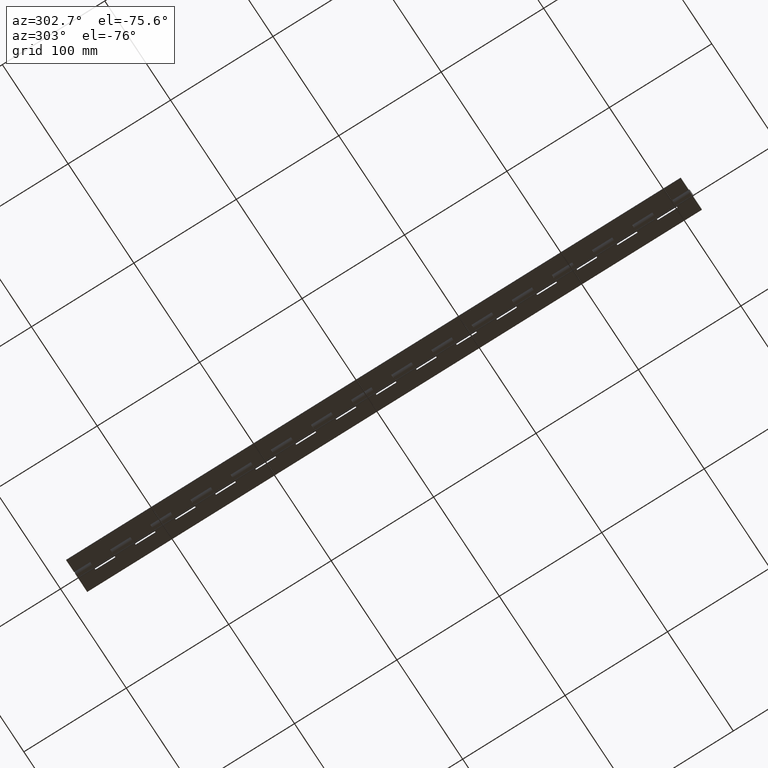
[diagram: clean part render]
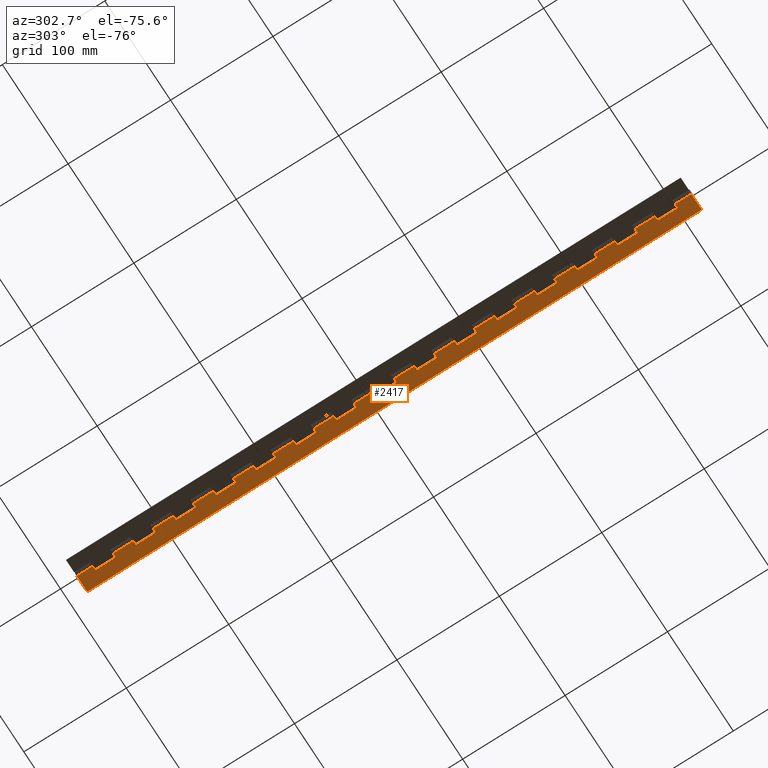
[diagram: same view with one face highlighted and labeled with its STEP entity id]
A machine part, auxiliary view. The second image highlights one B-rep face of the part: STEP entity #2417.
In plain terms, the highlighted planar face has unit normal (0, 0, 1).
Its self-contained STEP definition (entity closure, byte-faithful):
#3 = DIRECTION ( 'NONE',  ( 1.770125995894701000E-016, 1.000000000000000000, -0.0000000000000000000 ) ) ;
#14 = EDGE_CURVE ( 'NONE', #4854, #4868, #5901, .T. ) ;
#17 = VECTOR ( 'NONE', #1521, 1000.000000000000000 ) ;
#24 = LINE ( 'NONE', #6133, #5371 ) ;
#34 = CARTESIAN_POINT ( 'NONE',  ( 3.999999999999996400, 274.4000000000000300, -3.350002187502756400 ) ) ;
#79 = LINE ( 'NONE', #5497, #5417 ) ;
#82 = ORIENTED_EDGE ( 'NONE', *, *, #2186, .T. ) ;
#85 = LINE ( 'NONE', #3140, #4050 ) ;
#94 = DIRECTION ( 'NONE',  ( -1.000000000000000000, -0.0000000000000000000, -0.0000000000000000000 ) ) ;
#95 = CARTESIAN_POINT ( 'NONE',  ( 0.0000000000000000000, 490.0000000000000600, -3.350002187502757700 ) ) ;
#104 = CARTESIAN_POINT ( 'NONE',  ( 0.0000000000000000000, 548.8000000000000700, -3.350002187502757700 ) ) ;
#106 = DIRECTION ( 'NONE',  ( -1.000000000000000000, -0.0000000000000000000, -0.0000000000000000000 ) ) ;
#111 = CARTESIAN_POINT ( 'NONE',  ( 0.0000000000000000000, 372.4000000000000900, -3.350002187502757700 ) ) ;
#132 = CARTESIAN_POINT ( 'NONE',  ( 16.00000000000000000, 509.6000000000000800, -3.350002187502757700 ) ) ;
#150 = VECTOR ( 'NONE', #2169, 1000.000000000000000 ) ;
#153 = CARTESIAN_POINT ( 'NONE',  ( 4.000000000000000000, 215.6000000000000500, -3.350002187502757700 ) ) ;
#155 = VECTOR ( 'NONE', #659, 1000.000000000000000 ) ;
#165 = DIRECTION ( 'NONE',  ( -0.0000000000000000000, -1.000000000000000000, -0.0000000000000000000 ) ) ;
#166 = CARTESIAN_POINT ( 'NONE',  ( 0.0000000000000000000, 568.3999999999999800, -3.350002187502755900 ) ) ;
#171 = CARTESIAN_POINT ( 'NONE',  ( 16.00000000000000000, 470.4000000000000300, -3.350002187502757700 ) ) ;
#181 = CARTESIAN_POINT ( 'NONE',  ( 0.0000000000000000000, 19.60000000000000100, -3.350002187502757700 ) ) ;
#185 = DIRECTION ( 'NONE',  ( -1.000000000000000000, -0.0000000000000000000, -0.0000000000000000000 ) ) ;
#197 = DIRECTION ( 'NONE',  ( 1.000000000000000000, 0.0000000000000000000, -1.084202172485504400E-016 ) ) ;
#210 = VERTEX_POINT ( 'NONE', #4672 ) ;
#238 = VECTOR ( 'NONE', #392, 1000.000000000000000 ) ;
#257 = DIRECTION ( 'NONE',  ( 1.770125995894701000E-016, 1.000000000000000000, -0.0000000000000000000 ) ) ;
#273 = DIRECTION ( 'NONE',  ( 1.770125995894701000E-016, 1.000000000000000000, -0.0000000000000000000 ) ) ;
#290 = CARTESIAN_POINT ( 'NONE',  ( 4.000000000000000000, 333.2000000000000500, -3.350002187502757700 ) ) ;
#293 = LINE ( 'NONE', #1298, #3940 ) ;
#296 = VERTEX_POINT ( 'NONE', #4794 ) ;
#301 = CARTESIAN_POINT ( 'NONE',  ( 4.000000000000000000, 411.6000000000000800, -3.350002187502757700 ) ) ;
#331 = DIRECTION ( 'NONE',  ( -0.0000000000000000000, -1.000000000000000000, -0.0000000000000000000 ) ) ;
#334 = CARTESIAN_POINT ( 'NONE',  ( 0.0000000000000000000, 568.3999999999999800, -3.350002187502757700 ) ) ;
#337 = EDGE_CURVE ( 'NONE', #3381, #1179, #293, .T. ) ;
#352 = LINE ( 'NONE', #4805, #2958 ) ;
#371 = DIRECTION ( 'NONE',  ( -1.000000000000000000, 0.0000000000000000000, 1.084202172485504400E-016 ) ) ;
#389 = ORIENTED_EDGE ( 'NONE', *, *, #4729, .F. ) ;
#390 = VERTEX_POINT ( 'NONE', #1659 ) ;
#391 = EDGE_CURVE ( 'NONE', #5646, #5825, #2223, .T. ) ;
#392 = DIRECTION ( 'NONE',  ( -1.000000000000000000, -0.0000000000000000000, -0.0000000000000000000 ) ) ;
#414 = DIRECTION ( 'NONE',  ( -1.000000000000000000, -0.0000000000000000000, -0.0000000000000000000 ) ) ;
#418 = VECTOR ( 'NONE', #3118, 1000.000000000000000 ) ;
#425 = EDGE_CURVE ( 'NONE', #3454, #2831, #675, .T. ) ;
#448 = LINE ( 'NONE', #2548, #4584 ) ;
#470 = VECTOR ( 'NONE', #866, 1000.000000000000000 ) ;
#475 = CARTESIAN_POINT ( 'NONE',  ( 3.999999999999996400, 78.40000000000002000, -3.350002187502756400 ) ) ;
#478 = LINE ( 'NONE', #1546, #3082 ) ;
#482 = CARTESIAN_POINT ( 'NONE',  ( 0.0000000000000000000, 529.2000000000000500, -3.350002187502757700 ) ) ;
#519 = VECTOR ( 'NONE', #3740, 1000.000000000000000 ) ;
#532 = CARTESIAN_POINT ( 'NONE',  ( 0.0000000000000000000, 274.4000000000000300, -3.350002187502757700 ) ) ;
#535 = DIRECTION ( 'NONE',  ( 1.770125995894701000E-016, 1.000000000000000000, -0.0000000000000000000 ) ) ;
#538 = VERTEX_POINT ( 'NONE', #2510 ) ;
#563 = LINE ( 'NONE', #2864, #5928 ) ;
#586 = CARTESIAN_POINT ( 'NONE',  ( 0.0000000000000000000, 0.0000000000000000000, -3.350002187502757700 ) ) ;
#623 = LINE ( 'NONE', #6610, #470 ) ;
#633 = DIRECTION ( 'NONE',  ( 1.000000000000000000, 0.0000000000000000000, -1.084202172485504400E-016 ) ) ;
#654 = ORIENTED_EDGE ( 'NONE', *, *, #912, .T. ) ;
#659 = DIRECTION ( 'NONE',  ( 1.770125995894701000E-016, 1.000000000000000000, -0.0000000000000000000 ) ) ;
#668 = VECTOR ( 'NONE', #3788, 1000.000000000000000 ) ;
#675 = LINE ( 'NONE', #5288, #3295 ) ;
#680 = VECTOR ( 'NONE', #3341, 1000.000000000000000 ) ;
#681 = CARTESIAN_POINT ( 'NONE',  ( 0.0000000000000000000, 392.0000000000000600, -3.350002187502757700 ) ) ;
#709 = CARTESIAN_POINT ( 'NONE',  ( 4.000000000000000000, 137.2000000000000200, -3.350002187502757700 ) ) ;
#740 = CARTESIAN_POINT ( 'NONE',  ( 0.0000000000000000000, 294.0000000000000600, -3.350002187502757700 ) ) ;
#773 = LINE ( 'NONE', #1878, #2157 ) ;
#793 = DIRECTION ( 'NONE',  ( 1.000000000000000000, 0.0000000000000000000, -1.084202172485504400E-016 ) ) ;
#801 = CARTESIAN_POINT ( 'NONE',  ( 0.0000000000000000000, 568.3999999999999800, -3.350002187502755900 ) ) ;
#830 = ORIENTED_EDGE ( 'NONE', *, *, #2357, .T. ) ;
#836 = VECTOR ( 'NONE', #3088, 1000.000000000000000 ) ;
#842 = VECTOR ( 'NONE', #4320, 1000.000000000000000 ) ;
#866 = DIRECTION ( 'NONE',  ( 1.770125995894701000E-016, 1.000000000000000000, -0.0000000000000000000 ) ) ;
#879 = EDGE_CURVE ( 'NONE', #3823, #1574, #4659, .T. ) ;
#880 = DIRECTION ( 'NONE',  ( 1.000000000000000000, 0.0000000000000000000, -1.084202172485504400E-016 ) ) ;
#884 = EDGE_CURVE ( 'NONE', #3799, #296, #1883, .T. ) ;
#893 = ORIENTED_EDGE ( 'NONE', *, *, #1907, .T. ) ;
#912 = EDGE_CURVE ( 'NONE', #390, #1179, #3131, .T. ) ;
#945 = VECTOR ( 'NONE', #958, 1000.000000000000000 ) ;
#958 = DIRECTION ( 'NONE',  ( -0.0000000000000000000, -1.000000000000000000, -0.0000000000000000000 ) ) ;
#962 = CARTESIAN_POINT ( 'NONE',  ( 4.000000000000000000, 254.8000000000000400, -3.350002187502757700 ) ) ;
#966 = VERTEX_POINT ( 'NONE', #95 ) ;
#974 = VERTEX_POINT ( 'NONE', #111 ) ;
#1006 = ORIENTED_EDGE ( 'NONE', *, *, #5023, .T. ) ;
#1018 = ORIENTED_EDGE ( 'NONE', *, *, #6103, .T. ) ;
#1037 = CARTESIAN_POINT ( 'NONE',  ( -3.350002187502757700, 568.3999999999999800, -3.350002187502757700 ) ) ;
#1057 = ORIENTED_EDGE ( 'NONE', *, *, #6538, .T. ) ;
#1082 = CARTESIAN_POINT ( 'NONE',  ( 4.000000000000000000, 294.0000000000000600, -3.350002187502757700 ) ) ;
#1105 = CARTESIAN_POINT ( 'NONE',  ( 0.0000000000000000000, 568.3999999999999800, -3.350002187502755900 ) ) ;
#1128 = CARTESIAN_POINT ( 'NONE',  ( 0.0000000000000000000, 78.40000000000000600, -3.350002187502757700 ) ) ;
#1130 = DIRECTION ( 'NONE',  ( 1.770125995894701000E-016, 1.000000000000000000, -0.0000000000000000000 ) ) ;
#1137 = CARTESIAN_POINT ( 'NONE',  ( 16.00000000000000000, 78.40000000000002000, -3.350002187502757700 ) ) ;
#1139 = CARTESIAN_POINT ( 'NONE',  ( 0.0000000000000000000, 254.8000000000000400, -3.350002187502757700 ) ) ;
#1178 = VECTOR ( 'NONE', #535, 1000.000000000000000 ) ;
#1179 = VERTEX_POINT ( 'NONE', #482 ) ;
#1180 = EDGE_CURVE ( 'NONE', #3626, #4572, #3041, .T. ) ;
#1194 = EDGE_CURVE ( 'NONE', #2166, #6113, #4248, .T. ) ;
#1228 = LINE ( 'NONE', #3961, #6595 ) ;
#1247 = VERTEX_POINT ( 'NONE', #3302 ) ;
#1248 = CARTESIAN_POINT ( 'NONE',  ( -3.350002187502757700, 450.8000000000000700, -3.350002187502757700 ) ) ;
#1298 = CARTESIAN_POINT ( 'NONE',  ( 0.0000000000000000000, 568.3999999999999800, -3.350002187502755900 ) ) ;
#1310 = EDGE_CURVE ( 'NONE', #3321, #4641, #4652, .T. ) ;
#1330 = VECTOR ( 'NONE', #3637, 1000.000000000000000 ) ;
#1347 = EDGE_CURVE ( 'NONE', #3760, #6599, #5876, .T. ) ;
#1356 = EDGE_CURVE ( 'NONE', #5646, #966, #5713, .T. ) ;
#1365 = EDGE_CURVE ( 'NONE', #3677, #3460, #352, .T. ) ;
#1380 = LINE ( 'NONE', #5664, #17 ) ;
#1404 = VERTEX_POINT ( 'NONE', #2384 ) ;
#1411 = EDGE_CURVE ( 'NONE', #2882, #974, #1228, .T. ) ;
#1442 = LINE ( 'NONE', #3513, #5592 ) ;
#1444 = VECTOR ( 'NONE', #3, 1000.000000000000000 ) ;
#1453 = DIRECTION ( 'NONE',  ( -1.000000000000000000, -0.0000000000000000000, -0.0000000000000000000 ) ) ;
#1501 = VERTEX_POINT ( 'NONE', #5602 ) ;
#1506 = LINE ( 'NONE', #1105, #4273 ) ;
#1521 = DIRECTION ( 'NONE',  ( -1.000000000000000000, -0.0000000000000000000, -0.0000000000000000000 ) ) ;
#1546 = CARTESIAN_POINT ( 'NONE',  ( 4.000000000000000000, 450.8000000000000700, -3.350002187502757700 ) ) ;
#1560 = VECTOR ( 'NONE', #4339, 1000.000000000000000 ) ;
#1571 = EDGE_CURVE ( 'NONE', #6359, #5243, #4704, .T. ) ;
#1572 = DIRECTION ( 'NONE',  ( 1.770125995894701000E-016, 1.000000000000000000, -0.0000000000000000000 ) ) ;
#1574 = VERTEX_POINT ( 'NONE', #4100 ) ;
#1584 = VERTEX_POINT ( 'NONE', #4628 ) ;
#1608 = LINE ( 'NONE', #6081, #238 ) ;
#1611 = CARTESIAN_POINT ( 'NONE',  ( 16.00000000000000000, -15.80000000000000100, -3.350002187502757700 ) ) ;
#1626 = CARTESIAN_POINT ( 'NONE',  ( 16.00000000000000000, 274.4000000000000300, -3.350002187502757700 ) ) ;
#1628 = DIRECTION ( 'NONE',  ( -0.0000000000000000000, -1.000000000000000000, -0.0000000000000000000 ) ) ;
#1636 = EDGE_CURVE ( 'NONE', #210, #5982, #3012, .T. ) ;
#1644 = VECTOR ( 'NONE', #5649, 1000.000000000000000 ) ;
#1659 = CARTESIAN_POINT ( 'NONE',  ( 4.000000000000000000, 529.2000000000000500, -3.350002187502757700 ) ) ;
#1662 = VERTEX_POINT ( 'NONE', #2609 ) ;
#1682 = EDGE_CURVE ( 'NONE', #2969, #5279, #85, .T. ) ;
#1691 = VERTEX_POINT ( 'NONE', #4165 ) ;
#1693 = LINE ( 'NONE', #5458, #4470 ) ;
#1696 = CARTESIAN_POINT ( 'NONE',  ( 0.0000000000000000000, 568.3999999999999800, -3.350002187502755900 ) ) ;
#1701 = LINE ( 'NONE', #5589, #2608 ) ;
#1708 = CARTESIAN_POINT ( 'NONE',  ( 3.999999999999996400, 431.2000000000001000, -3.350002187502756400 ) ) ;
#1726 = VECTOR ( 'NONE', #94, 1000.000000000000000 ) ;
#1743 = ORIENTED_EDGE ( 'NONE', *, *, #391, .T. ) ;
#1751 = EDGE_CURVE ( 'NONE', #3626, #3309, #6156, .T. ) ;
#1757 = LINE ( 'NONE', #3318, #5753 ) ;
#1775 = LINE ( 'NONE', #301, #3493 ) ;
#1783 = LINE ( 'NONE', #6217, #418 ) ;
#1787 = CARTESIAN_POINT ( 'NONE',  ( 0.0000000000000000000, 156.8000000000000100, -3.350002187502757700 ) ) ;
#1813 = PLANE ( 'NONE',  #4753 ) ;
#1820 = ORIENTED_EDGE ( 'NONE', *, *, #337, .F. ) ;
#1826 = DIRECTION ( 'NONE',  ( -1.000000000000000000, -0.0000000000000000000, -0.0000000000000000000 ) ) ;
#1832 = EDGE_CURVE ( 'NONE', #1691, #1404, #2926, .T. ) ;
#1848 = CARTESIAN_POINT ( 'NONE',  ( 0.0000000000000000000, 313.6000000000000200, -3.350002187502757700 ) ) ;
#1877 = VECTOR ( 'NONE', #165, 1000.000000000000000 ) ;
#1878 = CARTESIAN_POINT ( 'NONE',  ( 0.0000000000000000000, 568.3999999999999800, -3.350002187502755900 ) ) ;
#1883 = LINE ( 'NONE', #3180, #1726 ) ;
#1886 = CARTESIAN_POINT ( 'NONE',  ( 4.000000000000000000, 333.2000000000000500, -3.350002187502757700 ) ) ;
#1900 = VECTOR ( 'NONE', #6580, 1000.000000000000000 ) ;
#1902 = ORIENTED_EDGE ( 'NONE', *, *, #6311, .T. ) ;
#1907 = EDGE_CURVE ( 'NONE', #5878, #4641, #6562, .T. ) ;
#1912 = VECTOR ( 'NONE', #793, 1000.000000000000000 ) ;
#1955 = CARTESIAN_POINT ( 'NONE',  ( 4.000000000000000000, 568.3999999999999800, -3.350002187502757700 ) ) ;
#1986 = VERTEX_POINT ( 'NONE', #2311 ) ;
#2012 = CARTESIAN_POINT ( 'NONE',  ( 0.0000000000000000000, 117.6000000000000100, -3.350002187502757700 ) ) ;
#2043 = EDGE_CURVE ( 'NONE', #6359, #5639, #79, .T. ) ;
#2065 = LINE ( 'NONE', #5923, #680 ) ;
#2079 = CARTESIAN_POINT ( 'NONE',  ( 0.0000000000000000000, 411.6000000000000800, -3.350002187502757700 ) ) ;
#2109 = CARTESIAN_POINT ( 'NONE',  ( 0.0000000000000000000, 568.3999999999999800, -3.350002187502755900 ) ) ;
#2141 = DIRECTION ( 'NONE',  ( 1.000000000000000000, 0.0000000000000000000, -1.084202172485504400E-016 ) ) ;
#2145 = VERTEX_POINT ( 'NONE', #1955 ) ;
#2156 = DIRECTION ( 'NONE',  ( 1.770125995894701000E-016, 1.000000000000000000, -0.0000000000000000000 ) ) ;
#2157 = VECTOR ( 'NONE', #4482, 1000.000000000000000 ) ;
#2166 = VERTEX_POINT ( 'NONE', #5070 ) ;
#2169 = DIRECTION ( 'NONE',  ( 1.000000000000000000, 0.0000000000000000000, -1.084202172485504400E-016 ) ) ;
#2186 = EDGE_CURVE ( 'NONE', #1247, #4839, #4122, .T. ) ;
#2203 = CARTESIAN_POINT ( 'NONE',  ( 4.000000000000000000, 176.4000000000000300, -3.350002187502757700 ) ) ;
#2223 = LINE ( 'NONE', #132, #836 ) ;
#2271 = DIRECTION ( 'NONE',  ( -0.0000000000000000000, -1.000000000000000000, -0.0000000000000000000 ) ) ;
#2280 = DIRECTION ( 'NONE',  ( 1.000000000000000000, 0.0000000000000000000, -1.084202172485504400E-016 ) ) ;
#2285 = CARTESIAN_POINT ( 'NONE',  ( 0.0000000000000000000, 333.2000000000000500, -3.350002187502757700 ) ) ;
#2291 = CARTESIAN_POINT ( 'NONE',  ( 3.999999999999996400, 470.4000000000000300, -3.350002187502756400 ) ) ;
#2311 = CARTESIAN_POINT ( 'NONE',  ( 3.999999999999996400, 352.8000000000000700, -3.350002187502756400 ) ) ;
#2316 = LINE ( 'NONE', #709, #842 ) ;
#2321 = CARTESIAN_POINT ( 'NONE',  ( 3.999999999999996400, 313.6000000000000200, -3.350002187502756400 ) ) ;
#2357 = EDGE_CURVE ( 'NONE', #4915, #1574, #2996, .T. ) ;
#2379 = VECTOR ( 'NONE', #2156, 1000.000000000000000 ) ;
#2384 = CARTESIAN_POINT ( 'NONE',  ( 4.000000000000000000, 176.4000000000000300, -3.350002187502757700 ) ) ;
#2386 = VERTEX_POINT ( 'NONE', #5433 ) ;
#2403 = VERTEX_POINT ( 'NONE', #2321 ) ;
#2417 = ADVANCED_FACE ( 'NONE', ( #3862 ), #1813, .F. ) ;
#2418 = VECTOR ( 'NONE', #3745, 1000.000000000000000 ) ;
#2419 = EDGE_CURVE ( 'NONE', #2882, #538, #2491, .T. ) ;
#2458 = EDGE_CURVE ( 'NONE', #2403, #5878, #6627, .T. ) ;
#2479 = ORIENTED_EDGE ( 'NONE', *, *, #4596, .F. ) ;
#2484 = EDGE_CURVE ( 'NONE', #2652, #1584, #773, .T. ) ;
#2491 = LINE ( 'NONE', #3909, #1912 ) ;
#2494 = CARTESIAN_POINT ( 'NONE',  ( 4.000000000000000000, 19.60000000000000100, -3.350002187502757700 ) ) ;
#2510 = CARTESIAN_POINT ( 'NONE',  ( 3.999999999999996400, 392.0000000000000600, -3.350002187502756400 ) ) ;
#2531 = CARTESIAN_POINT ( 'NONE',  ( 0.0000000000000000000, 568.3999999999999800, -3.350002187502755900 ) ) ;
#2532 = DIRECTION ( 'NONE',  ( 1.770125995894701000E-016, 1.000000000000000000, -0.0000000000000000000 ) ) ;
#2548 = CARTESIAN_POINT ( 'NONE',  ( 16.00000000000000000, 196.0000000000000600, -3.350002187502757700 ) ) ;
#2570 = VERTEX_POINT ( 'NONE', #586 ) ;
#2573 = ORIENTED_EDGE ( 'NONE', *, *, #1682, .F. ) ;
#2578 = EDGE_CURVE ( 'NONE', #2570, #2969, #1506, .T. ) ;
#2595 = DIRECTION ( 'NONE',  ( -0.0000000000000000000, -1.000000000000000000, -0.0000000000000000000 ) ) ;
#2598 = EDGE_CURVE ( 'NONE', #4252, #6272, #6703, .T. ) ;
#2604 = VECTOR ( 'NONE', #2595, 1000.000000000000000 ) ;
#2608 = VECTOR ( 'NONE', #5048, 1000.000000000000000 ) ;
#2609 = CARTESIAN_POINT ( 'NONE',  ( 0.0000000000000000000, 176.4000000000000300, -3.350002187502757700 ) ) ;
#2617 = ORIENTED_EDGE ( 'NONE', *, *, #1347, .T. ) ;
#2628 = ORIENTED_EDGE ( 'NONE', *, *, #2752, .F. ) ;
#2652 = VERTEX_POINT ( 'NONE', #1787 ) ;
#2687 = VECTOR ( 'NONE', #3398, 1000.000000000000000 ) ;
#2697 = VECTOR ( 'NONE', #5338, 1000.000000000000000 ) ;
#2713 = VECTOR ( 'NONE', #2532, 1000.000000000000000 ) ;
#2745 = ORIENTED_EDGE ( 'NONE', *, *, #5195, .F. ) ;
#2752 = EDGE_CURVE ( 'NONE', #3034, #3460, #4521, .T. ) ;
#2770 = VECTOR ( 'NONE', #371, 1000.000000000000000 ) ;
#2772 = CARTESIAN_POINT ( 'NONE',  ( 0.0000000000000000000, 509.6000000000000800, -3.350002187502757700 ) ) ;
#2774 = DIRECTION ( 'NONE',  ( -0.0000000000000000000, -1.000000000000000000, -0.0000000000000000000 ) ) ;
#2777 = CARTESIAN_POINT ( 'NONE',  ( -3.350002187502757700, 333.2000000000000500, -3.350002187502757700 ) ) ;
#2819 = ORIENTED_EDGE ( 'NONE', *, *, #5755, .T. ) ;
#2831 = VERTEX_POINT ( 'NONE', #5026 ) ;
#2838 = CARTESIAN_POINT ( 'NONE',  ( 0.0000000000000000000, 431.2000000000001000, -3.350002187502757700 ) ) ;
#2844 = CARTESIAN_POINT ( 'NONE',  ( 4.000000000000000000, 58.80000000000000400, -3.350002187502757700 ) ) ;
#2857 = CARTESIAN_POINT ( 'NONE',  ( 3.999999999999996400, 196.0000000000000600, -3.350002187502756400 ) ) ;
#2864 = CARTESIAN_POINT ( 'NONE',  ( 4.000000000000000000, 98.00000000000001400, -3.350002187502757700 ) ) ;
#2868 = ORIENTED_EDGE ( 'NONE', *, *, #5587, .T. ) ;
#2870 = CARTESIAN_POINT ( 'NONE',  ( 16.00000000000000000, 235.2000000000000200, -3.350002187502757700 ) ) ;
#2875 = VECTOR ( 'NONE', #1453, 1000.000000000000000 ) ;
#2877 = DIRECTION ( 'NONE',  ( 1.000000000000000000, 0.0000000000000000000, -1.084202172485504400E-016 ) ) ;
#2882 = VERTEX_POINT ( 'NONE', #681 ) ;
#2909 = ORIENTED_EDGE ( 'NONE', *, *, #1636, .T. ) ;
#2910 = EDGE_CURVE ( 'NONE', #4868, #3384, #2316, .T. ) ;
#2926 = LINE ( 'NONE', #2203, #155 ) ;
#2935 = EDGE_CURVE ( 'NONE', #1986, #6273, #2065, .T. ) ;
#2958 = VECTOR ( 'NONE', #5304, 1000.000000000000000 ) ;
#2962 = CARTESIAN_POINT ( 'NONE',  ( 16.00000000000000000, 584.2000000000000500, -3.350002187502757700 ) ) ;
#2965 = LINE ( 'NONE', #4840, #1560 ) ;
#2969 = VERTEX_POINT ( 'NONE', #4393 ) ;
#2977 = VERTEX_POINT ( 'NONE', #2857 ) ;
#2996 = LINE ( 'NONE', #1248, #5576 ) ;
#3012 = LINE ( 'NONE', #5696, #1444 ) ;
#3019 = ORIENTED_EDGE ( 'NONE', *, *, #1832, .T. ) ;
#3034 = VERTEX_POINT ( 'NONE', #1848 ) ;
#3041 = LINE ( 'NONE', #6167, #1644 ) ;
#3048 = VECTOR ( 'NONE', #5764, 1000.000000000000000 ) ;
#3061 = CARTESIAN_POINT ( 'NONE',  ( 4.000000000000000000, 98.00000000000001400, -3.350002187502757700 ) ) ;
#3079 = CARTESIAN_POINT ( 'NONE',  ( 3.999999999999996400, 117.6000000000000400, -3.350002187502756400 ) ) ;
#3082 = VECTOR ( 'NONE', #1572, 1000.000000000000000 ) ;
#3088 = DIRECTION ( 'NONE',  ( 1.000000000000000000, 0.0000000000000000000, -1.084202172485504400E-016 ) ) ;
#3118 = DIRECTION ( 'NONE',  ( -1.000000000000000000, -0.0000000000000000000, -0.0000000000000000000 ) ) ;
#3121 = VECTOR ( 'NONE', #633, 1000.000000000000000 ) ;
#3131 = LINE ( 'NONE', #3336, #5548 ) ;
#3139 = VERTEX_POINT ( 'NONE', #4567 ) ;
#3140 = CARTESIAN_POINT ( 'NONE',  ( -6.153854184092820600E-016, -15.80000000000000100, -3.350002187502755900 ) ) ;
#3150 = VECTOR ( 'NONE', #331, 1000.000000000000000 ) ;
#3180 = CARTESIAN_POINT ( 'NONE',  ( -3.350002187502757700, 215.6000000000000500, -3.350002187502757700 ) ) ;
#3187 = VERTEX_POINT ( 'NONE', #3061 ) ;
#3194 = CARTESIAN_POINT ( 'NONE',  ( 4.000000000000000000, 137.2000000000000200, -3.350002187502757700 ) ) ;
#3200 = EDGE_CURVE ( 'NONE', #5880, #2977, #448, .T. ) ;
#3212 = EDGE_CURVE ( 'NONE', #2652, #1691, #5640, .T. ) ;
#3213 = DIRECTION ( 'NONE',  ( -1.000000000000000000, -0.0000000000000000000, -0.0000000000000000000 ) ) ;
#3241 = ORIENTED_EDGE ( 'NONE', *, *, #6660, .T. ) ;
#3288 = EDGE_CURVE ( 'NONE', #2145, #4027, #5477, .T. ) ;
#3294 = LINE ( 'NONE', #4752, #5891 ) ;
#3295 = VECTOR ( 'NONE', #1130, 1000.000000000000000 ) ;
#3302 = CARTESIAN_POINT ( 'NONE',  ( 0.0000000000000000000, 39.20000000000000300, -3.350002187502757700 ) ) ;
#3307 = ORIENTED_EDGE ( 'NONE', *, *, #4892, .T. ) ;
#3309 = VERTEX_POINT ( 'NONE', #34 ) ;
#3318 = CARTESIAN_POINT ( 'NONE',  ( 16.00000000000000000, 352.8000000000000700, -3.350002187502757700 ) ) ;
#3321 = VERTEX_POINT ( 'NONE', #4713 ) ;
#3336 = CARTESIAN_POINT ( 'NONE',  ( -3.350002187502757700, 529.2000000000000500, -3.350002187502757700 ) ) ;
#3341 = DIRECTION ( 'NONE',  ( 1.770125995894701000E-016, 1.000000000000000000, -0.0000000000000000000 ) ) ;
#3381 = VERTEX_POINT ( 'NONE', #104 ) ;
#3384 = VERTEX_POINT ( 'NONE', #3194 ) ;
#3398 = DIRECTION ( 'NONE',  ( 1.000000000000000000, 0.0000000000000000000, -1.084202172485504400E-016 ) ) ;
#3406 = ORIENTED_EDGE ( 'NONE', *, *, #2578, .F. ) ;
#3408 = EDGE_CURVE ( 'NONE', #3760, #6272, #3294, .T. ) ;
#3429 = CARTESIAN_POINT ( 'NONE',  ( 0.0000000000000000000, 98.00000000000001400, -3.350002187502757700 ) ) ;
#3432 = DIRECTION ( 'NONE',  ( 1.000000000000000000, 0.0000000000000000000, -1.084202172485504400E-016 ) ) ;
#3439 = DIRECTION ( 'NONE',  ( -0.0000000000000000000, -1.000000000000000000, -0.0000000000000000000 ) ) ;
#3454 = VERTEX_POINT ( 'NONE', #2291 ) ;
#3460 = VERTEX_POINT ( 'NONE', #740 ) ;
#3463 = CARTESIAN_POINT ( 'NONE',  ( -3.350002187502754100, 0.0000000000000000000, -3.350002187502757700 ) ) ;
#3467 = ORIENTED_EDGE ( 'NONE', *, *, #3652, .F. ) ;
#3482 = CARTESIAN_POINT ( 'NONE',  ( 16.00000000000000000, 117.6000000000000400, -3.350002187502757700 ) ) ;
#3493 = VECTOR ( 'NONE', #3913, 1000.000000000000000 ) ;
#3513 = CARTESIAN_POINT ( 'NONE',  ( -3.350002187502757700, 372.4000000000000900, -3.350002187502757700 ) ) ;
#3514 = VERTEX_POINT ( 'NONE', #3931 ) ;
#3550 = ORIENTED_EDGE ( 'NONE', *, *, #3804, .T. ) ;
#3574 = VECTOR ( 'NONE', #3975, 1000.000000000000000 ) ;
#3588 = ORIENTED_EDGE ( 'NONE', *, *, #5776, .T. ) ;
#3590 = CARTESIAN_POINT ( 'NONE',  ( 16.00000000000000000, 156.8000000000000400, -3.350002187502757700 ) ) ;
#3619 = ORIENTED_EDGE ( 'NONE', *, *, #3734, .T. ) ;
#3624 = DIRECTION ( 'NONE',  ( 1.000000000000000000, 0.0000000000000000000, -1.084202172485504400E-016 ) ) ;
#3626 = VERTEX_POINT ( 'NONE', #532 ) ;
#3629 = CARTESIAN_POINT ( 'NONE',  ( 4.000000000000000000, 450.8000000000000700, -3.350002187502757700 ) ) ;
#3637 = DIRECTION ( 'NONE',  ( -1.000000000000000000, -0.0000000000000000000, -0.0000000000000000000 ) ) ;
#3639 = CARTESIAN_POINT ( 'NONE',  ( 4.000000000000000000, 568.3999999999999800, -3.350002187502757700 ) ) ;
#3652 = EDGE_CURVE ( 'NONE', #6567, #296, #4088, .T. ) ;
#3676 = ORIENTED_EDGE ( 'NONE', *, *, #3408, .F. ) ;
#3677 = VERTEX_POINT ( 'NONE', #1082 ) ;
#3711 = LINE ( 'NONE', #4604, #945 ) ;
#3722 = EDGE_CURVE ( 'NONE', #5825, #390, #6680, .T. ) ;
#3734 = EDGE_CURVE ( 'NONE', #3187, #5619, #3755, .T. ) ;
#3740 = DIRECTION ( 'NONE',  ( -0.0000000000000000000, -1.000000000000000000, -0.0000000000000000000 ) ) ;
#3741 = ORIENTED_EDGE ( 'NONE', *, *, #1751, .T. ) ;
#3745 = DIRECTION ( 'NONE',  ( -1.000000000000000000, -0.0000000000000000000, -0.0000000000000000000 ) ) ;
#3755 = LINE ( 'NONE', #4228, #6360 ) ;
#3760 = VERTEX_POINT ( 'NONE', #1128 ) ;
#3788 = DIRECTION ( 'NONE',  ( 1.000000000000000000, 0.0000000000000000000, -1.084202172485504400E-016 ) ) ;
#3794 = CARTESIAN_POINT ( 'NONE',  ( 4.000000000000000000, 372.4000000000000900, -3.350002187502757700 ) ) ;
#3797 = CARTESIAN_POINT ( 'NONE',  ( 16.00000000000000000, 39.20000000000001000, -3.350002187502757700 ) ) ;
#3799 = VERTEX_POINT ( 'NONE', #153 ) ;
#3804 = EDGE_CURVE ( 'NONE', #3823, #3454, #5883, .T. ) ;
#3823 = VERTEX_POINT ( 'NONE', #6379 ) ;
#3847 = EDGE_CURVE ( 'NONE', #2386, #4027, #2965, .T. ) ;
#3862 = FACE_OUTER_BOUND ( 'NONE', #6143, .T. ) ;
#3863 = ORIENTED_EDGE ( 'NONE', *, *, #884, .T. ) ;
#3903 = DIRECTION ( 'NONE',  ( -1.000000000000000000, -0.0000000000000000000, -0.0000000000000000000 ) ) ;
#3909 = CARTESIAN_POINT ( 'NONE',  ( 16.00000000000000000, 392.0000000000000600, -3.350002187502757700 ) ) ;
#3913 = DIRECTION ( 'NONE',  ( 1.770125995894701000E-016, 1.000000000000000000, -0.0000000000000000000 ) ) ;
#3920 = ORIENTED_EDGE ( 'NONE', *, *, #4935, .T. ) ;
#3931 = CARTESIAN_POINT ( 'NONE',  ( 3.999999999999996400, 548.8000000000000700, -3.350002187502756400 ) ) ;
#3933 = ORIENTED_EDGE ( 'NONE', *, *, #3288, .T. ) ;
#3940 = VECTOR ( 'NONE', #6478, 1000.000000000000000 ) ;
#3944 = CARTESIAN_POINT ( 'NONE',  ( 3.999999999999996400, 509.6000000000000800, -3.350002187502756400 ) ) ;
#3950 = ORIENTED_EDGE ( 'NONE', *, *, #5907, .T. ) ;
#3961 = CARTESIAN_POINT ( 'NONE',  ( 0.0000000000000000000, 568.3999999999999800, -3.350002187502755900 ) ) ;
#3965 = VECTOR ( 'NONE', #185, 1000.000000000000000 ) ;
#3975 = DIRECTION ( 'NONE',  ( 1.000000000000000000, 0.0000000000000000000, 0.0000000000000000000 ) ) ;
#4027 = VERTEX_POINT ( 'NONE', #334 ) ;
#4050 = VECTOR ( 'NONE', #3624, 1000.000000000000000 ) ;
#4069 = LINE ( 'NONE', #4791, #2697 ) ;
#4076 = DIRECTION ( 'NONE',  ( -0.0000000000000000000, -1.000000000000000000, -0.0000000000000000000 ) ) ;
#4088 = LINE ( 'NONE', #2109, #3048 ) ;
#4100 = CARTESIAN_POINT ( 'NONE',  ( 0.0000000000000000000, 450.8000000000000700, -3.350002187502757700 ) ) ;
#4120 = DIRECTION ( 'NONE',  ( 1.000000000000000000, 0.0000000000000000000, -1.084202172485504400E-016 ) ) ;
#4122 = LINE ( 'NONE', #3797, #150 ) ;
#4126 = EDGE_CURVE ( 'NONE', #2831, #966, #5627, .T. ) ;
#4165 = CARTESIAN_POINT ( 'NONE',  ( 3.999999999999996400, 156.8000000000000400, -3.350002187502756400 ) ) ;
#4220 = ORIENTED_EDGE ( 'NONE', *, *, #1365, .T. ) ;
#4228 = CARTESIAN_POINT ( 'NONE',  ( -3.350002187502757700, 98.00000000000001400, -3.350002187502757700 ) ) ;
#4241 = CARTESIAN_POINT ( 'NONE',  ( -3.350002187502757700, 58.80000000000000400, -3.350002187502757700 ) ) ;
#4248 = LINE ( 'NONE', #962, #2713 ) ;
#4252 = VERTEX_POINT ( 'NONE', #5190 ) ;
#4259 = VECTOR ( 'NONE', #4120, 1000.000000000000000 ) ;
#4273 = VECTOR ( 'NONE', #1628, 1000.000000000000000 ) ;
#4281 = ORIENTED_EDGE ( 'NONE', *, *, #2598, .T. ) ;
#4286 = EDGE_CURVE ( 'NONE', #3381, #3514, #5875, .T. ) ;
#4291 = ORIENTED_EDGE ( 'NONE', *, *, #1194, .T. ) ;
#4318 = ORIENTED_EDGE ( 'NONE', *, *, #3847, .F. ) ;
#4320 = DIRECTION ( 'NONE',  ( 1.770125995894701000E-016, 1.000000000000000000, -0.0000000000000000000 ) ) ;
#4339 = DIRECTION ( 'NONE',  ( -0.0000000000000000000, -1.000000000000000000, -0.0000000000000000000 ) ) ;
#4376 = DIRECTION ( 'NONE',  ( -1.000000000000000000, -0.0000000000000000000, -0.0000000000000000000 ) ) ;
#4383 = EDGE_CURVE ( 'NONE', #4854, #5619, #24, .T. ) ;
#4393 = CARTESIAN_POINT ( 'NONE',  ( 0.0000000000000000000, -15.80000000000000100, -3.350002187502755900 ) ) ;
#4403 = EDGE_CURVE ( 'NONE', #3139, #5243, #1380, .T. ) ;
#4422 = ORIENTED_EDGE ( 'NONE', *, *, #2458, .T. ) ;
#4459 = ORIENTED_EDGE ( 'NONE', *, *, #14, .T. ) ;
#4470 = VECTOR ( 'NONE', #1826, 1000.000000000000000 ) ;
#4482 = DIRECTION ( 'NONE',  ( -0.0000000000000000000, -1.000000000000000000, -0.0000000000000000000 ) ) ;
#4489 = CARTESIAN_POINT ( 'NONE',  ( 0.0000000000000000000, 196.0000000000000300, -3.350002187502757700 ) ) ;
#4492 = VECTOR ( 'NONE', #2774, 1000.000000000000000 ) ;
#4517 = ORIENTED_EDGE ( 'NONE', *, *, #425, .T. ) ;
#4521 = LINE ( 'NONE', #801, #3150 ) ;
#4543 = VECTOR ( 'NONE', #4076, 1000.000000000000000 ) ;
#4567 = CARTESIAN_POINT ( 'NONE',  ( 4.000000000000000000, 411.6000000000000800, -3.350002187502757700 ) ) ;
#4572 = VERTEX_POINT ( 'NONE', #1139 ) ;
#4584 = VECTOR ( 'NONE', #4623, 1000.000000000000000 ) ;
#4596 = EDGE_CURVE ( 'NONE', #1247, #5480, #4069, .T. ) ;
#4604 = CARTESIAN_POINT ( 'NONE',  ( 16.00000000000000000, 568.3999999999999800, -3.350002187502757700 ) ) ;
#4623 = DIRECTION ( 'NONE',  ( 1.000000000000000000, 0.0000000000000000000, -1.084202172485504400E-016 ) ) ;
#4628 = CARTESIAN_POINT ( 'NONE',  ( 0.0000000000000000000, 137.2000000000000200, -3.350002187502757700 ) ) ;
#4637 = ORIENTED_EDGE ( 'NONE', *, *, #4286, .T. ) ;
#4641 = VERTEX_POINT ( 'NONE', #2285 ) ;
#4651 = VECTOR ( 'NONE', #880, 1000.000000000000000 ) ;
#4652 = LINE ( 'NONE', #166, #1877 ) ;
#4659 = LINE ( 'NONE', #5273, #519 ) ;
#4672 = CARTESIAN_POINT ( 'NONE',  ( 3.999999999999996400, 0.0000000000000000000, -3.350002187502757700 ) ) ;
#4680 = ORIENTED_EDGE ( 'NONE', *, *, #3722, .T. ) ;
#4698 = CARTESIAN_POINT ( 'NONE',  ( 4.000000000000000000, 254.8000000000000400, -3.350002187502757700 ) ) ;
#4704 = LINE ( 'NONE', #2531, #4543 ) ;
#4713 = CARTESIAN_POINT ( 'NONE',  ( 0.0000000000000000000, 352.8000000000000700, -3.350002187502757700 ) ) ;
#4729 = EDGE_CURVE ( 'NONE', #1501, #2386, #5527, .T. ) ;
#4752 = CARTESIAN_POINT ( 'NONE',  ( 0.0000000000000000000, 568.3999999999999800, -3.350002187502755900 ) ) ;
#4753 = AXIS2_PLACEMENT_3D ( 'NONE', #5451, #5984, #2877 ) ;
#4761 = ORIENTED_EDGE ( 'NONE', *, *, #4763, .T. ) ;
#4763 = EDGE_CURVE ( 'NONE', #3309, #3677, #1701, .T. ) ;
#4781 = VECTOR ( 'NONE', #2141, 1000.000000000000000 ) ;
#4786 = LINE ( 'NONE', #2844, #6007 ) ;
#4791 = CARTESIAN_POINT ( 'NONE',  ( 0.0000000000000000000, 568.3999999999999800, -3.350002187502755900 ) ) ;
#4794 = CARTESIAN_POINT ( 'NONE',  ( 0.0000000000000000000, 215.6000000000000500, -3.350002187502757700 ) ) ;
#4805 = CARTESIAN_POINT ( 'NONE',  ( -3.350002187502757700, 294.0000000000000600, -3.350002187502757700 ) ) ;
#4836 = ORIENTED_EDGE ( 'NONE', *, *, #2910, .T. ) ;
#4839 = VERTEX_POINT ( 'NONE', #5097 ) ;
#4840 = CARTESIAN_POINT ( 'NONE',  ( 0.0000000000000000000, 568.3999999999999800, -3.350002187502755900 ) ) ;
#4854 = VERTEX_POINT ( 'NONE', #2012 ) ;
#4868 = VERTEX_POINT ( 'NONE', #3079 ) ;
#4892 = EDGE_CURVE ( 'NONE', #6113, #4572, #1783, .T. ) ;
#4908 = ORIENTED_EDGE ( 'NONE', *, *, #3212, .T. ) ;
#4915 = VERTEX_POINT ( 'NONE', #3629 ) ;
#4917 = VECTOR ( 'NONE', #5507, 1000.000000000000000 ) ;
#4935 = EDGE_CURVE ( 'NONE', #6567, #2166, #5437, .T. ) ;
#4940 = VECTOR ( 'NONE', #2280, 1000.000000000000000 ) ;
#4972 = ORIENTED_EDGE ( 'NONE', *, *, #4126, .T. ) ;
#4997 = LINE ( 'NONE', #3639, #1178 ) ;
#5023 = EDGE_CURVE ( 'NONE', #2570, #210, #6333, .T. ) ;
#5026 = CARTESIAN_POINT ( 'NONE',  ( 4.000000000000000000, 490.0000000000000600, -3.350002187502757700 ) ) ;
#5036 = CARTESIAN_POINT ( 'NONE',  ( 16.00000000000000000, 548.8000000000000700, -3.350002187502757700 ) ) ;
#5048 = DIRECTION ( 'NONE',  ( 1.770125995894701000E-016, 1.000000000000000000, -0.0000000000000000000 ) ) ;
#5070 = CARTESIAN_POINT ( 'NONE',  ( 3.999999999999996400, 235.2000000000000200, -3.350002187502756400 ) ) ;
#5074 = CARTESIAN_POINT ( 'NONE',  ( -3.350002187502757700, 490.0000000000000600, -3.350002187502757700 ) ) ;
#5097 = CARTESIAN_POINT ( 'NONE',  ( 3.999999999999996400, 39.20000000000001000, -3.350002187502756400 ) ) ;
#5128 = ORIENTED_EDGE ( 'NONE', *, *, #2935, .T. ) ;
#5163 = ORIENTED_EDGE ( 'NONE', *, *, #5511, .T. ) ;
#5173 = ORIENTED_EDGE ( 'NONE', *, *, #1356, .F. ) ;
#5190 = CARTESIAN_POINT ( 'NONE',  ( 4.000000000000000000, 58.80000000000000400, -3.350002187502757700 ) ) ;
#5195 = EDGE_CURVE ( 'NONE', #5880, #1662, #5353, .T. ) ;
#5215 = ORIENTED_EDGE ( 'NONE', *, *, #2043, .T. ) ;
#5243 = VERTEX_POINT ( 'NONE', #2079 ) ;
#5269 = CARTESIAN_POINT ( 'NONE',  ( 4.000000000000000000, 529.2000000000000500, -3.350002187502757700 ) ) ;
#5273 = CARTESIAN_POINT ( 'NONE',  ( 0.0000000000000000000, 568.3999999999999800, -3.350002187502755900 ) ) ;
#5279 = VERTEX_POINT ( 'NONE', #1611 ) ;
#5288 = CARTESIAN_POINT ( 'NONE',  ( 4.000000000000000000, 490.0000000000000600, -3.350002187502757700 ) ) ;
#5289 = ORIENTED_EDGE ( 'NONE', *, *, #2484, .F. ) ;
#5304 = DIRECTION ( 'NONE',  ( -1.000000000000000000, -0.0000000000000000000, -0.0000000000000000000 ) ) ;
#5328 = VECTOR ( 'NONE', #3213, 1000.000000000000000 ) ;
#5338 = DIRECTION ( 'NONE',  ( -0.0000000000000000000, -1.000000000000000000, -0.0000000000000000000 ) ) ;
#5343 = ORIENTED_EDGE ( 'NONE', *, *, #5931, .T. ) ;
#5353 = LINE ( 'NONE', #5700, #2604 ) ;
#5371 = VECTOR ( 'NONE', #5610, 1000.000000000000000 ) ;
#5417 = VECTOR ( 'NONE', #3432, 1000.000000000000000 ) ;
#5433 = CARTESIAN_POINT ( 'NONE',  ( 0.0000000000000000000, 584.2000000000000500, -3.350002187502755900 ) ) ;
#5437 = LINE ( 'NONE', #2870, #2687 ) ;
#5449 = ORIENTED_EDGE ( 'NONE', *, *, #1571, .F. ) ;
#5451 = CARTESIAN_POINT ( 'NONE',  ( 16.00000000000000000, 568.3999999999999800, -3.350002187502757700 ) ) ;
#5458 = CARTESIAN_POINT ( 'NONE',  ( -3.350002187502757700, 19.60000000000000100, -3.350002187502757700 ) ) ;
#5463 = ORIENTED_EDGE ( 'NONE', *, *, #4383, .F. ) ;
#5476 = ORIENTED_EDGE ( 'NONE', *, *, #879, .F. ) ;
#5477 = LINE ( 'NONE', #1037, #1330 ) ;
#5480 = VERTEX_POINT ( 'NONE', #181 ) ;
#5497 = CARTESIAN_POINT ( 'NONE',  ( 16.00000000000000000, 431.2000000000001000, -3.350002187502757700 ) ) ;
#5507 = DIRECTION ( 'NONE',  ( 1.770125995894701000E-016, 1.000000000000000000, -0.0000000000000000000 ) ) ;
#5511 = EDGE_CURVE ( 'NONE', #3034, #2403, #6331, .T. ) ;
#5527 = LINE ( 'NONE', #2962, #2770 ) ;
#5535 = EDGE_CURVE ( 'NONE', #4839, #4252, #4786, .T. ) ;
#5546 = ORIENTED_EDGE ( 'NONE', *, *, #6237, .T. ) ;
#5548 = VECTOR ( 'NONE', #3903, 1000.000000000000000 ) ;
#5549 = ORIENTED_EDGE ( 'NONE', *, *, #3200, .T. ) ;
#5576 = VECTOR ( 'NONE', #4376, 1000.000000000000000 ) ;
#5587 = EDGE_CURVE ( 'NONE', #5982, #5480, #1693, .T. ) ;
#5589 = CARTESIAN_POINT ( 'NONE',  ( 4.000000000000000000, 294.0000000000000600, -3.350002187502757700 ) ) ;
#5592 = VECTOR ( 'NONE', #414, 1000.000000000000000 ) ;
#5602 = CARTESIAN_POINT ( 'NONE',  ( 16.00000000000000000, 584.2000000000000500, -3.350002187502757700 ) ) ;
#5610 = DIRECTION ( 'NONE',  ( -0.0000000000000000000, -1.000000000000000000, -0.0000000000000000000 ) ) ;
#5619 = VERTEX_POINT ( 'NONE', #3429 ) ;
#5627 = LINE ( 'NONE', #5074, #2875 ) ;
#5639 = VERTEX_POINT ( 'NONE', #1708 ) ;
#5640 = LINE ( 'NONE', #3590, #4259 ) ;
#5646 = VERTEX_POINT ( 'NONE', #2772 ) ;
#5649 = DIRECTION ( 'NONE',  ( -0.0000000000000000000, -1.000000000000000000, -0.0000000000000000000 ) ) ;
#5664 = CARTESIAN_POINT ( 'NONE',  ( -3.350002187502757700, 411.6000000000000800, -3.350002187502757700 ) ) ;
#5696 = CARTESIAN_POINT ( 'NONE',  ( 4.000000000000000000, 19.60000000000000100, -3.350002187502757700 ) ) ;
#5700 = CARTESIAN_POINT ( 'NONE',  ( 0.0000000000000000000, 568.3999999999999800, -3.350002187502755900 ) ) ;
#5713 = LINE ( 'NONE', #1696, #4492 ) ;
#5753 = VECTOR ( 'NONE', #197, 1000.000000000000000 ) ;
#5755 = EDGE_CURVE ( 'NONE', #6599, #3187, #563, .T. ) ;
#5764 = DIRECTION ( 'NONE',  ( -0.0000000000000000000, -1.000000000000000000, -0.0000000000000000000 ) ) ;
#5776 = EDGE_CURVE ( 'NONE', #538, #3139, #1775, .T. ) ;
#5825 = VERTEX_POINT ( 'NONE', #3944 ) ;
#5875 = LINE ( 'NONE', #5036, #4651 ) ;
#5876 = LINE ( 'NONE', #1137, #3121 ) ;
#5878 = VERTEX_POINT ( 'NONE', #1886 ) ;
#5880 = VERTEX_POINT ( 'NONE', #4489 ) ;
#5882 = ORIENTED_EDGE ( 'NONE', *, *, #5535, .T. ) ;
#5883 = LINE ( 'NONE', #171, #668 ) ;
#5891 = VECTOR ( 'NONE', #2271, 1000.000000000000000 ) ;
#5901 = LINE ( 'NONE', #3482, #1900 ) ;
#5903 = ORIENTED_EDGE ( 'NONE', *, *, #1411, .F. ) ;
#5907 = EDGE_CURVE ( 'NONE', #3384, #1584, #1608, .T. ) ;
#5923 = CARTESIAN_POINT ( 'NONE',  ( 4.000000000000000000, 372.4000000000000900, -3.350002187502757700 ) ) ;
#5928 = VECTOR ( 'NONE', #273, 1000.000000000000000 ) ;
#5931 = EDGE_CURVE ( 'NONE', #6273, #974, #1442, .T. ) ;
#5974 = ORIENTED_EDGE ( 'NONE', *, *, #4403, .T. ) ;
#5982 = VERTEX_POINT ( 'NONE', #2494 ) ;
#5984 = DIRECTION ( 'NONE',  ( 1.084202172485504400E-016, -0.0000000000000000000, 1.000000000000000000 ) ) ;
#6007 = VECTOR ( 'NONE', #257, 1000.000000000000000 ) ;
#6012 = EDGE_CURVE ( 'NONE', #1501, #5279, #3711, .T. ) ;
#6081 = CARTESIAN_POINT ( 'NONE',  ( -3.350002187502757700, 137.2000000000000200, -3.350002187502757700 ) ) ;
#6103 = EDGE_CURVE ( 'NONE', #5639, #4915, #478, .T. ) ;
#6113 = VERTEX_POINT ( 'NONE', #4698 ) ;
#6114 = CARTESIAN_POINT ( 'NONE',  ( 0.0000000000000000000, 235.2000000000000200, -3.350002187502757700 ) ) ;
#6133 = CARTESIAN_POINT ( 'NONE',  ( 0.0000000000000000000, 568.3999999999999800, -3.350002187502755900 ) ) ;
#6143 = EDGE_LOOP ( 'NONE', ( #3241, #3933, #4318, #389, #6543, #2573, #3406, #1006, #2909, #2868, #2479, #82, #5882, #4281, #3676, #2617, #2819, #3619, #5463, #4459, #4836, #3950, #5289, #4908, #3019, #5546, #2745, #5549, #1057, #3863, #3467, #3920, #4291, #3307, #6378, #3741, #4761, #4220, #2628, #5163, #4422, #893, #6467, #1902, #5128, #5343, #5903, #6222, #3588, #5974, #5449, #5215, #1018, #830, #5476, #3550, #4517, #4972, #5173, #1743, #4680, #654, #1820, #4637 ) ) ;
#6156 = LINE ( 'NONE', #1626, #4781 ) ;
#6167 = CARTESIAN_POINT ( 'NONE',  ( 0.0000000000000000000, 568.3999999999999800, -3.350002187502755900 ) ) ;
#6217 = CARTESIAN_POINT ( 'NONE',  ( -3.350002187502757700, 254.8000000000000400, -3.350002187502757700 ) ) ;
#6222 = ORIENTED_EDGE ( 'NONE', *, *, #2419, .T. ) ;
#6237 = EDGE_CURVE ( 'NONE', #1404, #1662, #6391, .T. ) ;
#6272 = VERTEX_POINT ( 'NONE', #6385 ) ;
#6273 = VERTEX_POINT ( 'NONE', #3794 ) ;
#6311 = EDGE_CURVE ( 'NONE', #3321, #1986, #1757, .T. ) ;
#6331 = LINE ( 'NONE', #6412, #4940 ) ;
#6333 = LINE ( 'NONE', #3463, #3574 ) ;
#6342 = CARTESIAN_POINT ( 'NONE',  ( -3.350002187502757700, 176.4000000000000300, -3.350002187502757700 ) ) ;
#6359 = VERTEX_POINT ( 'NONE', #2838 ) ;
#6360 = VECTOR ( 'NONE', #106, 1000.000000000000000 ) ;
#6378 = ORIENTED_EDGE ( 'NONE', *, *, #1180, .F. ) ;
#6379 = CARTESIAN_POINT ( 'NONE',  ( 0.0000000000000000000, 470.4000000000000300, -3.350002187502757700 ) ) ;
#6385 = CARTESIAN_POINT ( 'NONE',  ( 0.0000000000000000000, 58.80000000000000400, -3.350002187502757700 ) ) ;
#6391 = LINE ( 'NONE', #6342, #2418 ) ;
#6412 = CARTESIAN_POINT ( 'NONE',  ( 16.00000000000000000, 313.6000000000000200, -3.350002187502757700 ) ) ;
#6467 = ORIENTED_EDGE ( 'NONE', *, *, #1310, .F. ) ;
#6478 = DIRECTION ( 'NONE',  ( -0.0000000000000000000, -1.000000000000000000, -0.0000000000000000000 ) ) ;
#6538 = EDGE_CURVE ( 'NONE', #2977, #3799, #623, .T. ) ;
#6543 = ORIENTED_EDGE ( 'NONE', *, *, #6012, .T. ) ;
#6562 = LINE ( 'NONE', #2777, #3965 ) ;
#6567 = VERTEX_POINT ( 'NONE', #6114 ) ;
#6580 = DIRECTION ( 'NONE',  ( 1.000000000000000000, 0.0000000000000000000, -1.084202172485504400E-016 ) ) ;
#6595 = VECTOR ( 'NONE', #3439, 1000.000000000000000 ) ;
#6599 = VERTEX_POINT ( 'NONE', #475 ) ;
#6610 = CARTESIAN_POINT ( 'NONE',  ( 4.000000000000000000, 215.6000000000000500, -3.350002187502757700 ) ) ;
#6627 = LINE ( 'NONE', #290, #4917 ) ;
#6660 = EDGE_CURVE ( 'NONE', #3514, #2145, #4997, .T. ) ;
#6680 = LINE ( 'NONE', #5269, #2379 ) ;
#6703 = LINE ( 'NONE', #4241, #5328 ) ;